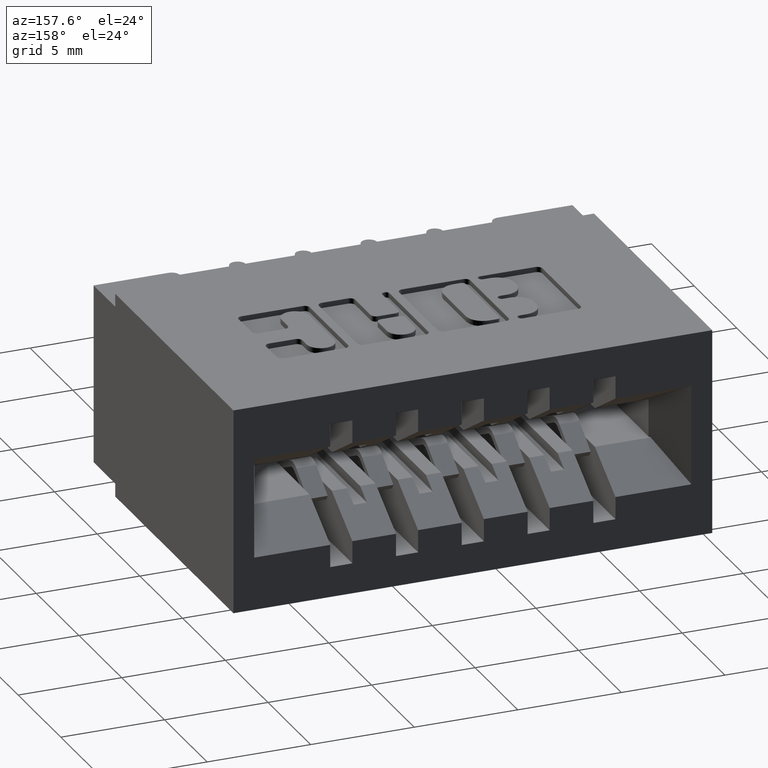
[diagram: clean part render]
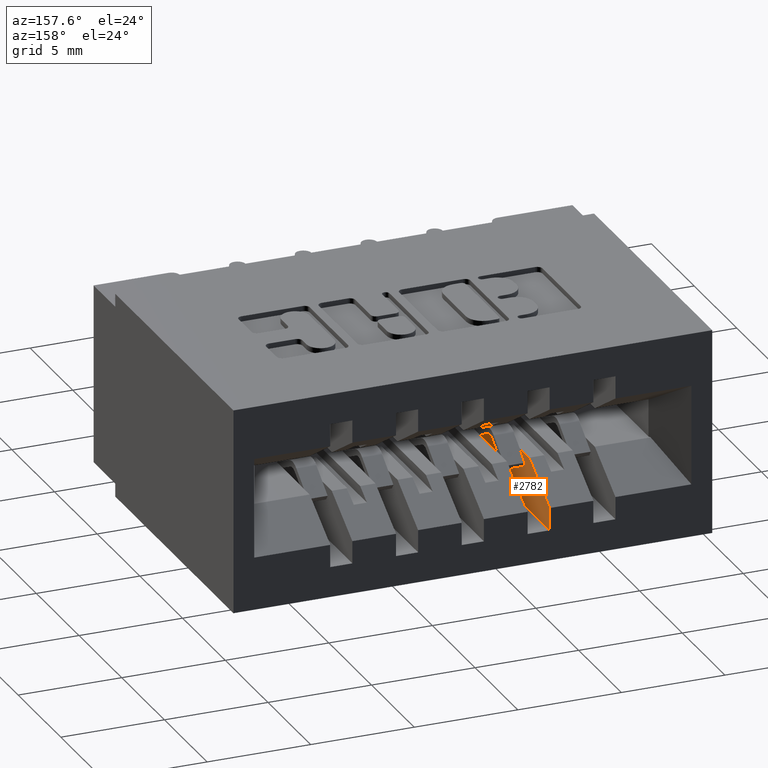
[diagram: same view with one face highlighted and labeled with its STEP entity id]
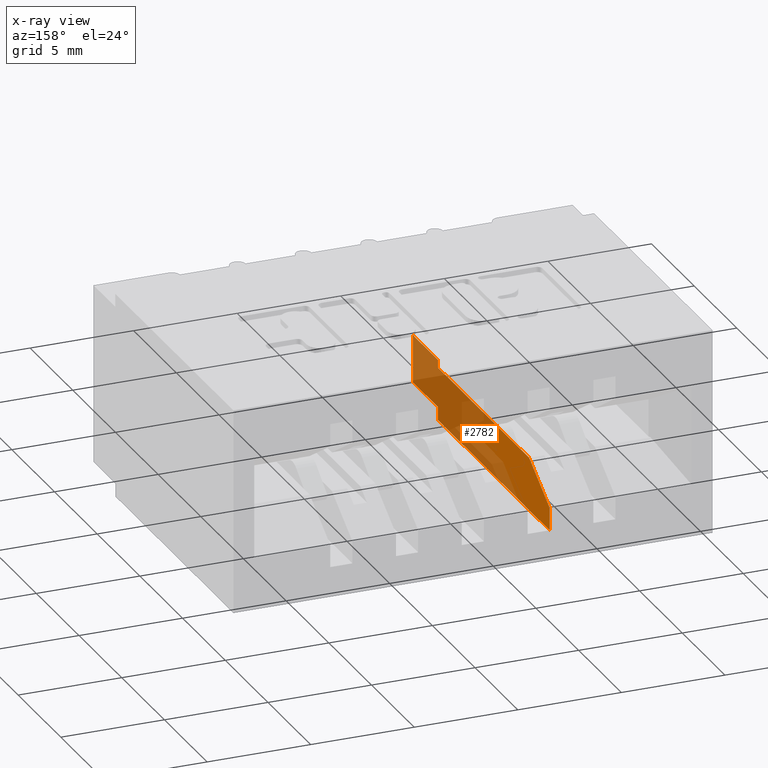
[diagram: x-ray of the same camera — body ghosted, the highlighted face saturated]
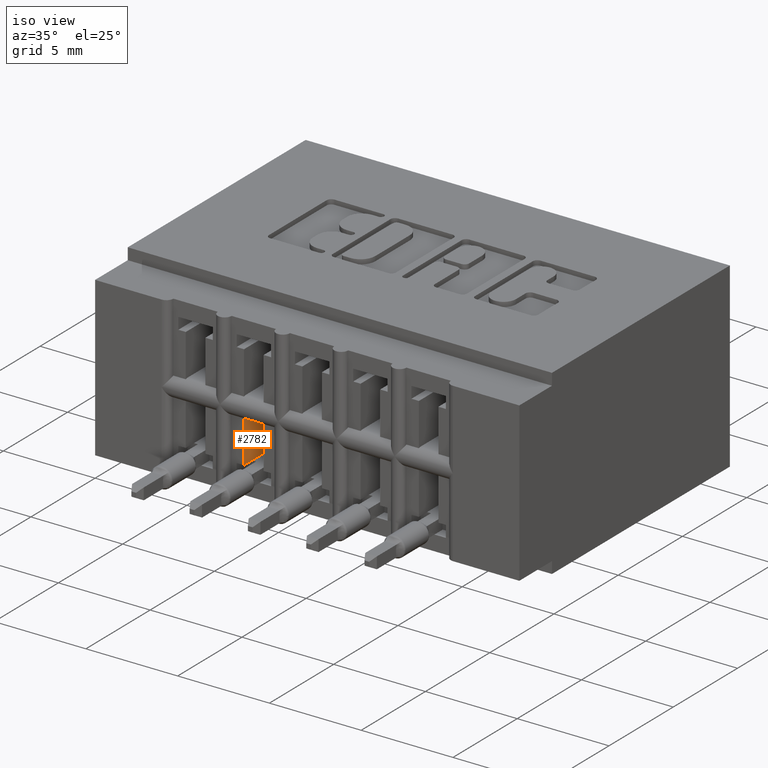
[diagram: same view with one face highlighted and labeled with its STEP entity id]
A machine part, auxiliary view. The second image highlights one B-rep face of the part: STEP entity #2782.
The next image is the same camera in x-ray: the body ghosted, the highlighted face saturated — about 62% of this face is hidden behind the body in this view.
A second angle (iso view) of the same face is appended — the face is thin or edge-on in the first view.
In plain terms, the highlighted planar face has unit normal (1, -0, -0).
Its self-contained STEP definition (entity closure, byte-faithful):
#14 = PLANE ( 'NONE',  #11244 ) ;
#54 = CARTESIAN_POINT ( 'NONE',  ( 0.3089999999999996083, 0.5499999999999999334, -0.2320000000000000118 ) ) ;
#254 = ORIENTED_EDGE ( 'NONE', *, *, #10682, .T. ) ;
#294 = CARTESIAN_POINT ( 'NONE',  ( 0.3089999999999997193, 0.01499999999999997169, -4.404883600063556642E-17 ) ) ;
#478 = DIRECTION ( 'NONE',  ( 2.385081683068867604E-16, 0.0000000000000000000, 1.000000000000000000 ) ) ;
#676 = DIRECTION ( 'NONE',  ( -1.000000000000000000, 4.930380657631322689E-32, 2.385081683068867604E-16 ) ) ;
#700 = EDGE_CURVE ( 'NONE', #10967, #2670, #5972, .T. ) ;
#817 = CARTESIAN_POINT ( 'NONE',  ( 0.3089999999995447499, 0.1299999999999999212, -0.2169999999999998597 ) ) ;
#915 = EDGE_CURVE ( 'NONE', #12677, #11345, #9702, .T. ) ;
#1167 = VERTEX_POINT ( 'NONE', #7502 ) ;
#1866 = VERTEX_POINT ( 'NONE', #9027 ) ;
#1948 = ORIENTED_EDGE ( 'NONE', *, *, #7031, .T. ) ;
#2239 = CARTESIAN_POINT ( 'NONE',  ( 0.3089999999999996083, 0.1299999999999999212, -0.1580000000000000571 ) ) ;
#2406 = CARTESIAN_POINT ( 'NONE',  ( 0.3089999999999996083, 0.1299999999999999212, -0.2320000000000000118 ) ) ;
#2469 = DIRECTION ( 'NONE',  ( 2.385081683068867604E-16, 0.0000000000000000000, 1.000000000000000000 ) ) ;
#2670 = VERTEX_POINT ( 'NONE', #9487 ) ;
#2782 = ADVANCED_FACE ( 'NONE', ( #4817 ), #14, .T. ) ;
#3065 = ORIENTED_EDGE ( 'NONE', *, *, #9786, .T. ) ;
#3108 = AXIS2_PLACEMENT_3D ( 'NONE', #5619, #676, #4454 ) ;
#3282 = DIRECTION ( 'NONE',  ( 2.385081683068867604E-16, 0.0000000000000000000, 1.000000000000000000 ) ) ;
#3472 = LINE ( 'NONE', #2239, #7874 ) ;
#3501 = VERTEX_POINT ( 'NONE', #10804 ) ;
#3639 = LINE ( 'NONE', #12302, #4267 ) ;
#3868 = CARTESIAN_POINT ( 'NONE',  ( 0.3089999999999996083, -1.010728034814419673E-32, -0.3325000000000000178 ) ) ;
#3882 = CARTESIAN_POINT ( 'NONE',  ( 0.3089999999995447499, 0.01499999999999997169, -0.2158566536146137582 ) ) ;
#3967 = DIRECTION ( 'NONE',  ( -1.238924702507070723E-16, 0.8545023705661022317, -0.5194474936862353287 ) ) ;
#4037 = VECTOR ( 'NONE', #6199, 39.37007874015748143 ) ;
#4267 = VECTOR ( 'NONE', #2469, 39.37007874015748143 ) ;
#4444 = ORIENTED_EDGE ( 'NONE', *, *, #915, .T. ) ;
#4454 = DIRECTION ( 'NONE',  ( 0.0000000000000000000, 0.0000000000000000000, -1.000000000000000000 ) ) ;
#4603 = EDGE_CURVE ( 'NONE', #12533, #11857, #9181, .T. ) ;
#4693 = DIRECTION ( 'NONE',  ( 1.000000000000000000, -4.930380657631322689E-32, -2.385081683068867604E-16 ) ) ;
#4761 = VECTOR ( 'NONE', #3967, 39.37007874015748143 ) ;
#4785 = DIRECTION ( 'NONE',  ( 6.294129236962987341E-31, -1.000000000000000000, 2.845674993400276306E-15 ) ) ;
#4817 = FACE_OUTER_BOUND ( 'NONE', #9156, .T. ) ;
#5374 = CARTESIAN_POINT ( 'NONE',  ( 0.3089999999999997748, 0.5499999999999998224, -0.2320000000000000118 ) ) ;
#5619 = CARTESIAN_POINT ( 'NONE',  ( 0.3089999999995447499, 0.02200000000000000566, -0.1949999999999995626 ) ) ;
#5800 = CIRCLE ( 'NONE', #3108, 0.02199999999999999872 ) ;
#5828 = LINE ( 'NONE', #8750, #9661 ) ;
#5925 = CARTESIAN_POINT ( 'NONE',  ( 0.3089999999999996083, 0.02200000000000000566, -0.2169999999999995544 ) ) ;
#5972 = LINE ( 'NONE', #5374, #4761 ) ;
#6199 = DIRECTION ( 'NONE',  ( -4.614608097405849258E-16, -0.0000000000000000000, -1.000000000000000000 ) ) ;
#6335 = VECTOR ( 'NONE', #11210, 39.37007874015748143 ) ;
#6803 = DIRECTION ( 'NONE',  ( 1.212154603119715305E-31, 1.000000000000000000, 2.626776916984869807E-16 ) ) ;
#6877 = VECTOR ( 'NONE', #7579, 39.37007874015748143 ) ;
#6915 = ORIENTED_EDGE ( 'NONE', *, *, #12792, .T. ) ;
#7031 = EDGE_CURVE ( 'NONE', #11345, #11857, #5800, .T. ) ;
#7174 = ORIENTED_EDGE ( 'NONE', *, *, #700, .F. ) ;
#7257 = VECTOR ( 'NONE', #4785, 39.37007874015748143 ) ;
#7277 = LINE ( 'NONE', #2406, #6335 ) ;
#7453 = CARTESIAN_POINT ( 'NONE',  ( 0.3089999999999996083, 0.1299999999999999212, -0.2169999999999998597 ) ) ;
#7502 = CARTESIAN_POINT ( 'NONE',  ( 0.3089999999999996083, 0.1299999999999999212, -0.2320000000000000118 ) ) ;
#7579 = DIRECTION ( 'NONE',  ( 4.930380657631322689E-32, 1.000000000000000000, -1.137588725299933902E-47 ) ) ;
#7764 = VECTOR ( 'NONE', #3282, 39.37007874015748143 ) ;
#7874 = VECTOR ( 'NONE', #478, 39.37007874015748143 ) ;
#8545 = EDGE_CURVE ( 'NONE', #1167, #12677, #3472, .T. ) ;
#8750 = CARTESIAN_POINT ( 'NONE',  ( 0.3089999999999996083, 0.1299999999999999489, -0.3074999999999999956 ) ) ;
#8837 = DIRECTION ( 'NONE',  ( -2.385081683068867604E-16, 0.0000000000000000000, -1.000000000000000000 ) ) ;
#9027 = CARTESIAN_POINT ( 'NONE',  ( 0.3089999999999996083, 0.1299999999999999489, -0.3324999999999999623 ) ) ;
#9156 = EDGE_LOOP ( 'NONE', ( #1948, #11532, #11347, #3065, #6915, #10110, #7174, #254, #12228, #4444 ) ) ;
#9181 = LINE ( 'NONE', #294, #7764 ) ;
#9241 = LINE ( 'NONE', #11367, #4037 ) ;
#9487 = CARTESIAN_POINT ( 'NONE',  ( 0.3089999999999997193, 0.6449999999999999067, -0.2897500000000000075 ) ) ;
#9661 = VECTOR ( 'NONE', #6803, 39.37007874015748143 ) ;
#9702 = LINE ( 'NONE', #817, #7257 ) ;
#9786 = EDGE_CURVE ( 'NONE', #11555, #1866, #9241, .T. ) ;
#9866 = CARTESIAN_POINT ( 'NONE',  ( 0.3089999999999997193, -1.010728034814419673E-32, -4.404883600063556642E-17 ) ) ;
#10110 = ORIENTED_EDGE ( 'NONE', *, *, #10814, .T. ) ;
#10200 = CARTESIAN_POINT ( 'NONE',  ( 0.3089999999999996083, 0.1299999999999999489, -0.3074999999999999956 ) ) ;
#10682 = EDGE_CURVE ( 'NONE', #10967, #1167, #7277, .T. ) ;
#10731 = LINE ( 'NONE', #3868, #6877 ) ;
#10804 = CARTESIAN_POINT ( 'NONE',  ( 0.3089999999999996083, 0.6449999999999999067, -0.3325000000000000178 ) ) ;
#10814 = EDGE_CURVE ( 'NONE', #3501, #2670, #3639, .T. ) ;
#10967 = VERTEX_POINT ( 'NONE', #54 ) ;
#11067 = CARTESIAN_POINT ( 'NONE',  ( 0.3089999999999996083, 0.01499999999999994220, -0.3075000000000000511 ) ) ;
#11210 = DIRECTION ( 'NONE',  ( -4.930380657631322689E-32, -1.000000000000000000, 0.0000000000000000000 ) ) ;
#11244 = AXIS2_PLACEMENT_3D ( 'NONE', #9866, #4693, #8837 ) ;
#11345 = VERTEX_POINT ( 'NONE', #5925 ) ;
#11347 = ORIENTED_EDGE ( 'NONE', *, *, #11886, .T. ) ;
#11367 = CARTESIAN_POINT ( 'NONE',  ( 0.3089999999999996083, 0.1299999999999999489, -0.3324999999999999623 ) ) ;
#11532 = ORIENTED_EDGE ( 'NONE', *, *, #4603, .F. ) ;
#11555 = VERTEX_POINT ( 'NONE', #10200 ) ;
#11857 = VERTEX_POINT ( 'NONE', #3882 ) ;
#11886 = EDGE_CURVE ( 'NONE', #12533, #11555, #5828, .T. ) ;
#12228 = ORIENTED_EDGE ( 'NONE', *, *, #8545, .T. ) ;
#12302 = CARTESIAN_POINT ( 'NONE',  ( 0.3089999999999997193, 0.6449999999999999067, -4.404883600063556642E-17 ) ) ;
#12533 = VERTEX_POINT ( 'NONE', #11067 ) ;
#12677 = VERTEX_POINT ( 'NONE', #7453 ) ;
#12792 = EDGE_CURVE ( 'NONE', #1866, #3501, #10731, .T. ) ;